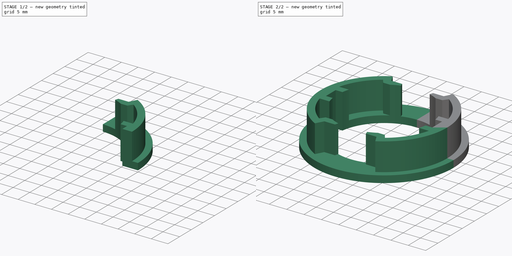
[diagram: build sequence overview — one tinted view per stage of 2, left to right]
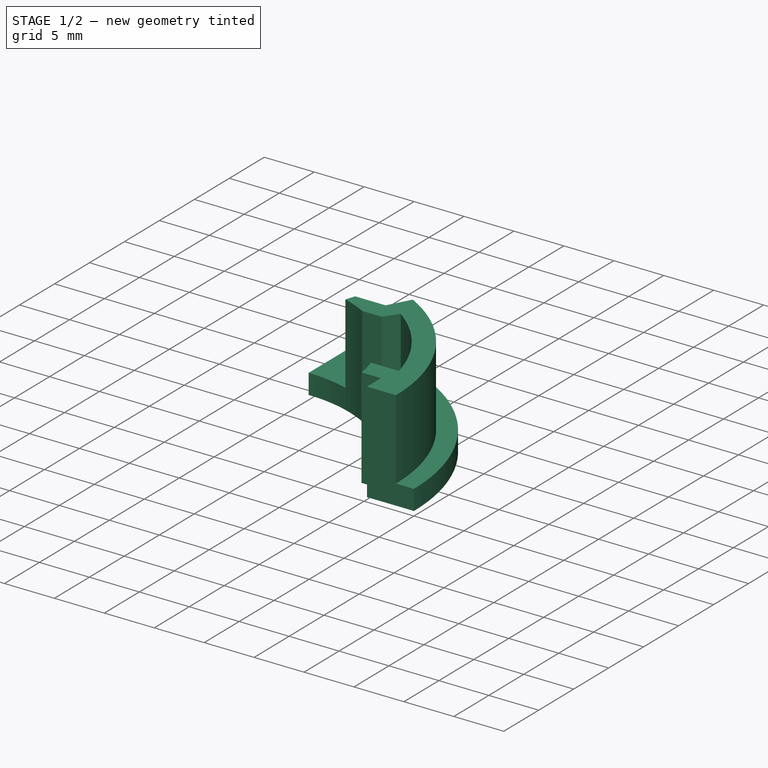
[diagram: stage 1 of 2 — iso view after this stage's code; geometry added in this stage tinted green]
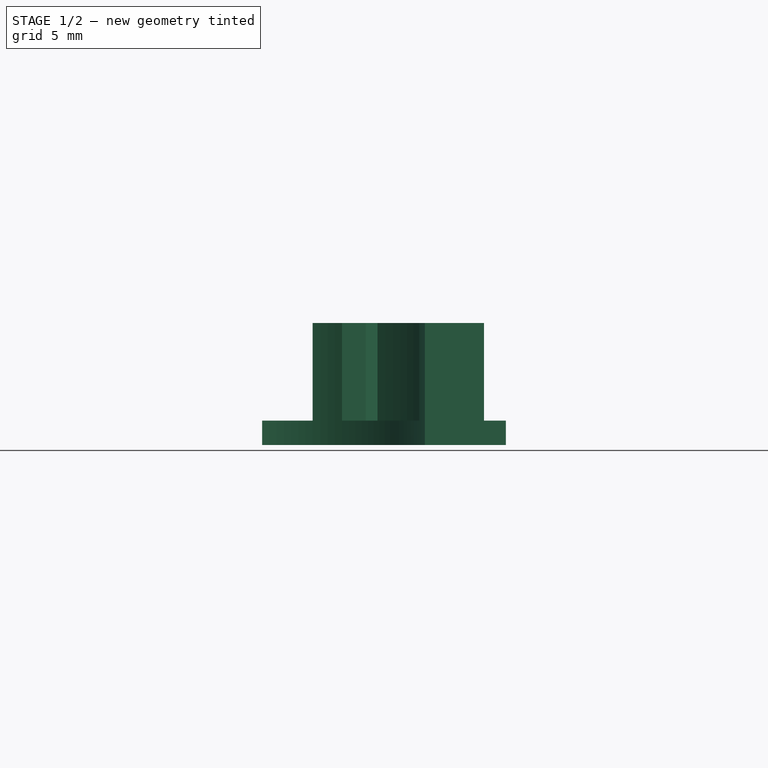
[diagram: stage 1 of 2 — front view after this stage's code; geometry added in this stage tinted green]
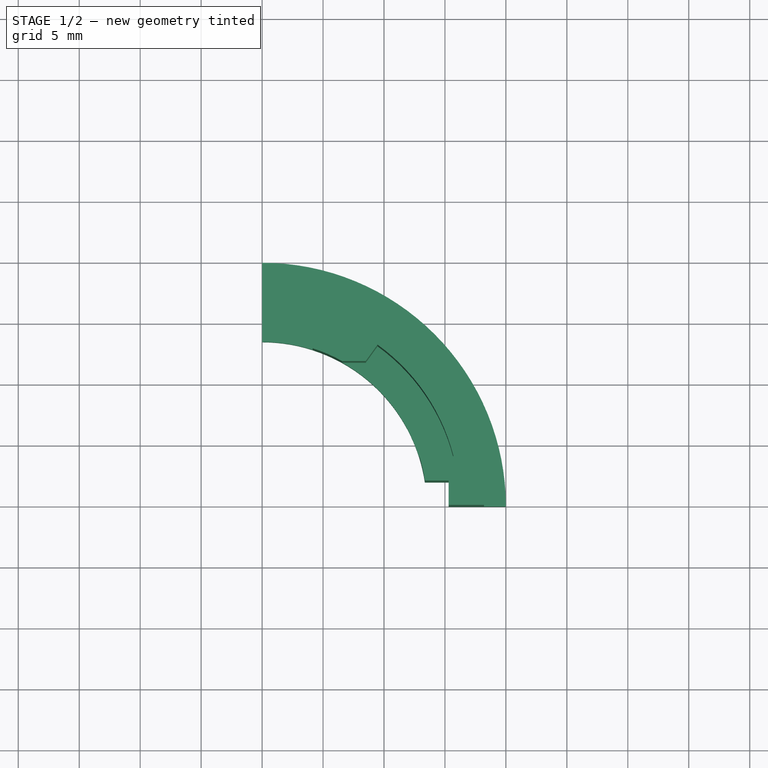
[diagram: stage 1 of 2 — top view after this stage's code; geometry added in this stage tinted green]
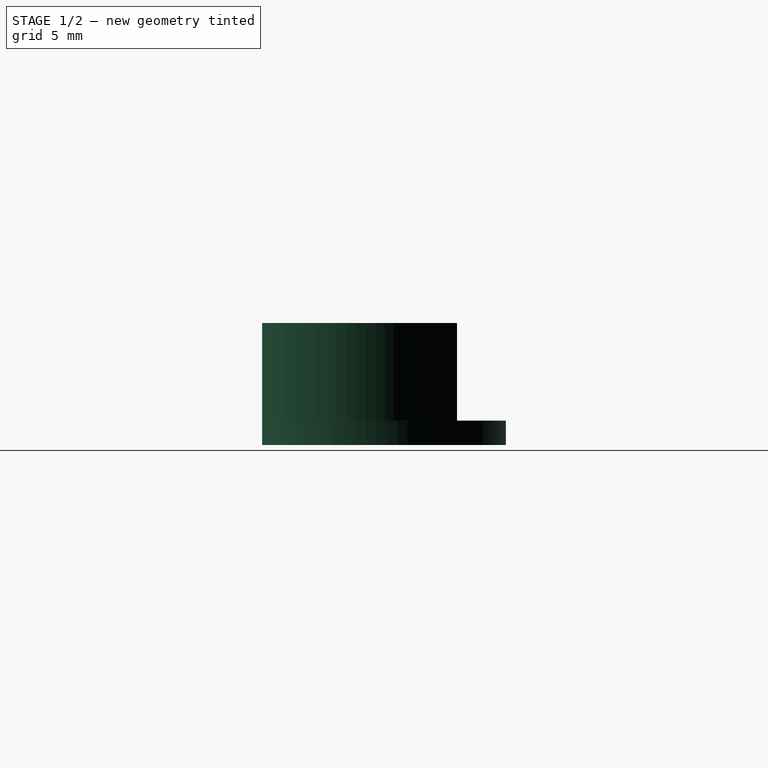
[diagram: stage 1 of 2 — right view after this stage's code; geometry added in this stage tinted green]
FCSTD DOCUMENT  (FreeCAD 1.0R39109 (Git))
Label: Idler
License: All rights reserved
LicenseURL: http://en.wikipedia.org/wiki/All_rights_reserved
objects: Sketcher::SketchObject×2, PartDesign::Pad×2, PartDesign::Mirrored×2, PartDesign::MultiTransform×1, PartDesign::Body×1
note: 17 computed .brp shape members not serialized (recipe doc carries the construction recipe); baked Part::Feature solids carry a one-line shape summary decoded from their .brp

FEATURE [Sketcher::SketchObject] Sketch
  ArcFitTolerance = 1e-06
  AttachmentSupport = -> [XY_Plane]
  FullyConstrained = true
  MakeInternals = false
  MapMode = 5
  sketch-geometry (16):
    g0: ArcOfCircle CenterX=0 CenterY=0 CenterZ=0 NormalX=0 NormalY=0 NormalZ=1 AngleXU=0 Radius=18.2 StartAngle=0 EndAngle=1.07297
    g1: LineSegment StartX=4.45084 StartY=13.8 StartZ=0 EndX=7.5 EndY=13.8 EndZ=0
    g2: LineSegment StartX=8.69074 StartY=15.991 StartZ=0 EndX=7.5 EndY=13.8 EndZ=0
    g3: ArcOfCircle CenterX=0 CenterY=0 CenterZ=0 NormalX=0 NormalY=0 NormalZ=1 AngleXU=0 Radius=16.2 StartAngle=0.249494 EndAngle=0.946319
    g4: LineSegment StartX=9.47171 StartY=13.1426 StartZ=0 EndX=8.50415 EndY=11.8 EndZ=0
    g5: LineSegment StartX=8.50415 StartY=11.8 StartZ=0 EndX=6.5582 EndY=11.8 EndZ=0
    g6: LineSegment [constr] StartX=7.5 StartY=13.8 StartZ=0 EndX=9.25725 EndY=12.845 EndZ=0
    g7: LineSegment [constr] StartX=7.5 StartY=13.8 StartZ=0 EndX=7.5 EndY=11.8 EndZ=0
    g8: ArcOfCircle CenterX=0 CenterY=0 CenterZ=0 NormalX=0 NormalY=0 NormalZ=1 AngleXU=0 Radius=13.5 StartAngle=1.06353 EndAngle=1.2588
    g9: LineSegment StartX=4.14389 StartY=12.8483 StartZ=0 EndX=4.45084 EndY=13.8 EndZ=0
    g10: LineSegment StartX=15.3 StartY=0 StartZ=0 EndX=15.3 EndY=2 EndZ=0
    g11: LineSegment [constr] StartX=9.47171 StartY=13.1426 StartZ=0 EndX=10.6411 EndY=14.7651 EndZ=0
    g12: LineSegment StartX=15.3 StartY=2 StartZ=0 EndX=13.351 EndY=2 EndZ=0
    g13: LineSegment StartX=12.8938 StartY=4 StartZ=0 EndX=15.6984 EndY=4 EndZ=0
    g14: LineSegment StartX=15.3 StartY=0 StartZ=0 EndX=18.2 EndY=0 EndZ=0
    g15: ArcOfCircle CenterX=0 CenterY=0 CenterZ=0 NormalX=0 NormalY=0 NormalZ=1 AngleXU=0 Radius=13.5 StartAngle=0.148695 EndAngle=0.300812
  constraints (48):
    c: Coincident(g0,g-1)
    c: PointOnObject(g0,g-1)
    c: Radius(g0) = 18.2
    c: Horizontal(g1)
    c: DistanceY(g0,g1) = 13.8
    c: Coincident(g2,g0)
    c: Coincident(g2,g1)
    c: PointOnObject(g0,g2)
    c: Coincident(g3,g0)
    c: Coincident(g4,g3)
    c: Coincident(g5,g4)
    c: Horizontal(g5)
    c: PointOnObject(g0,g4)
    c: Coincident(g6,g1)
    c: PointOnObject(g6,g4)
    c: Perpendicular(g2,g6)
    c: Coincident(g7,g1)
    c: PointOnObject(g7,g5)
    c: Vertical(g7)
    c: Equal(g6,g7)
    c: Coincident(g8,g0)
    c: Coincident(g8,g5)
    c: Coincident(g9,g8)
    c: Coincident(g9,g1)
    c: PointOnObject(g10,g-1)
    c: Vertical(g10)
    c: DistanceX(g0,g10) = 15.3
    c: DistanceY(g10,g10) = 2
    c: Coincident(g11,g3)
    c: PointOnObject(g11,g0)
    c: Perpendicular(g0,g11)
    c: Equal(g7,g11)
    c: DistanceY(g7,g7) = 2
    c: Coincident(g12,g10)
    c: Horizontal(g12)
    c: Coincident(g13,g3)
    c: DistanceY(g12,g13) = 2
    c: Horizontal(g13)
    c: Coincident(g14,g10)
    c: Coincident(g14,g0)
    c: Coincident(g15,g0)
    c: Coincident(g15,g12)
    c: Coincident(g15,g13)
    c: Radius(g15) = 13.5
    c: DistanceX(g0,g1) = 7.5
    c: Perpendicular(g8,g9)
    c: Distance(g9,g9) = 1
    c: Equal(g8,g15)
FEATURE [PartDesign::Pad] Pad  label="OuterRim"
  Direction = (0,0,1)
  Length = 10
  Length2 = 10
  Profile = -> Sketch
  ReferenceAxis = -> Sketch [N_Axis]
  Refine = true
  Suppressed = false
  Type = 0
FEATURE [Sketcher::SketchObject] Sketch001
  ArcFitTolerance = 1e-06
  AttachmentSupport = -> [XY_Plane]
  FullyConstrained = true
  MakeInternals = false
  MapMode = 5
  sketch-geometry (6):
    g0: ArcOfCircle CenterX=0 CenterY=0 CenterZ=0 NormalX=0 NormalY=0 NormalZ=1 AngleXU=0 Radius=20 StartAngle=0 EndAngle=1.5708
    g1: LineSegment StartX=8e-16 StartY=13.5 StartZ=0 EndX=1.2e-15 EndY=20 EndZ=0
    g2: LineSegment StartX=15.3 StartY=0 StartZ=0 EndX=20 EndY=0 EndZ=0
    g3: ArcOfCircle CenterX=0 CenterY=0 CenterZ=0 NormalX=0 NormalY=0 NormalZ=1 AngleXU=0 Radius=13.5 StartAngle=0.148695 EndAngle=1.5708
    g4: LineSegment StartX=13.351 StartY=2 StartZ=0 EndX=15.3 EndY=2 EndZ=0
    g5: LineSegment StartX=15.3 StartY=2 StartZ=0 EndX=15.3 EndY=0 EndZ=0
  constraints (18):
    c: PointOnObject(g0,g-1)
    c: Radius(g0) = 20
    c: PointOnObject(g1,g-2)
    c: Coincident(g2,g0)
    c: Coincident(g0,g-1)
    c: Coincident(g3,g0)
    c: PointOnObject(g2,g-1)
    c: Radius(g3) = 13.5
    c: Coincident(g1,g0)
    c: PointOnObject(g1,g-2)
    c: Coincident(g1,g3)
    c: Coincident(g4,g3)
    c: Horizontal(g4)
    c: Coincident(g5,g4)
    c: Coincident(g5,g2)
    c: Vertical(g5)
    c: DistanceY(g5,g5) = 2
    c: DistanceX(g0,g2) = 15.3
FEATURE [PartDesign::Pad] Pad001  label="BasePad"
  BaseFeature = -> Pad
  Direction = (0,0,1)
  Length = 2
  Length2 = 10
  Profile = -> Sketch001
  ReferenceAxis = -> Sketch001 [N_Axis]
  Refine = true
  Suppressed = false
  Type = 0
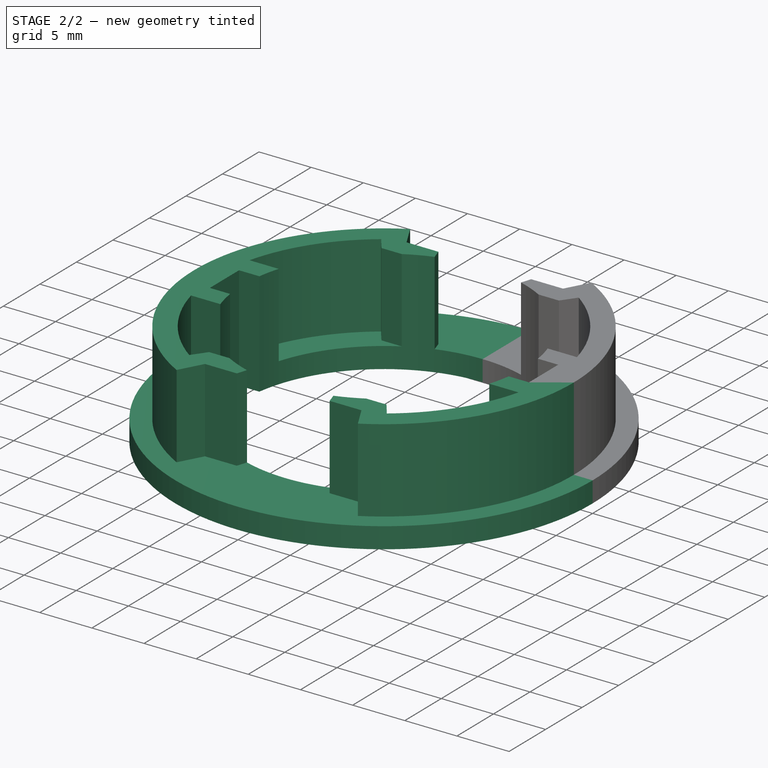
[diagram: stage 2 of 2 — iso view after this stage's code; geometry added in this stage tinted green]
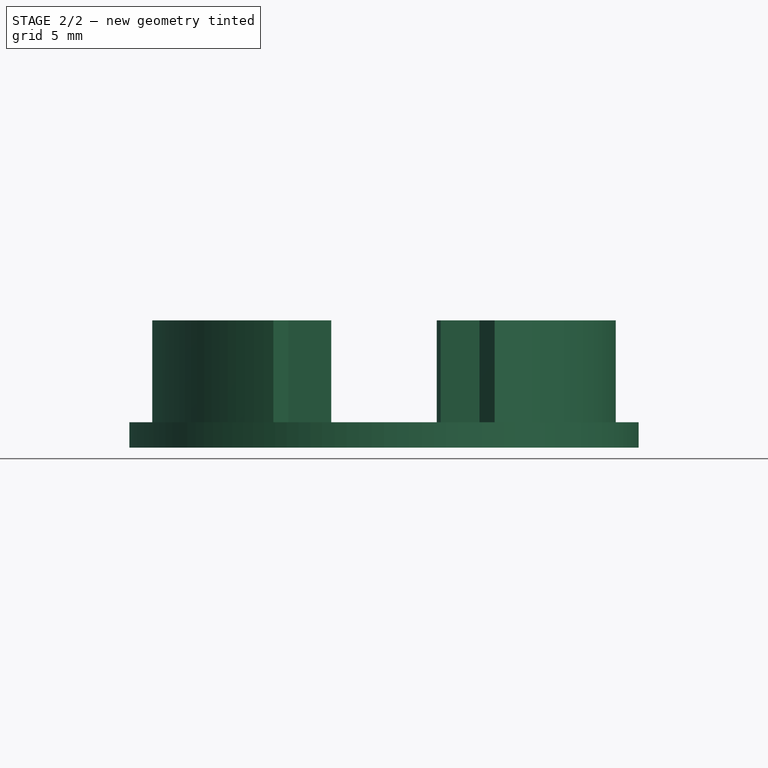
[diagram: stage 2 of 2 — front view after this stage's code; geometry added in this stage tinted green]
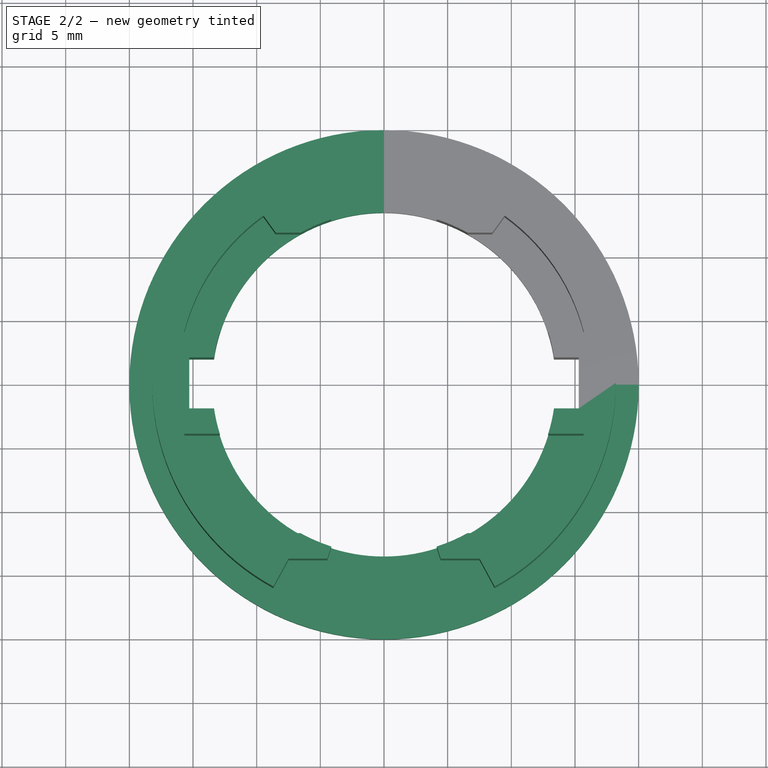
[diagram: stage 2 of 2 — top view after this stage's code; geometry added in this stage tinted green]
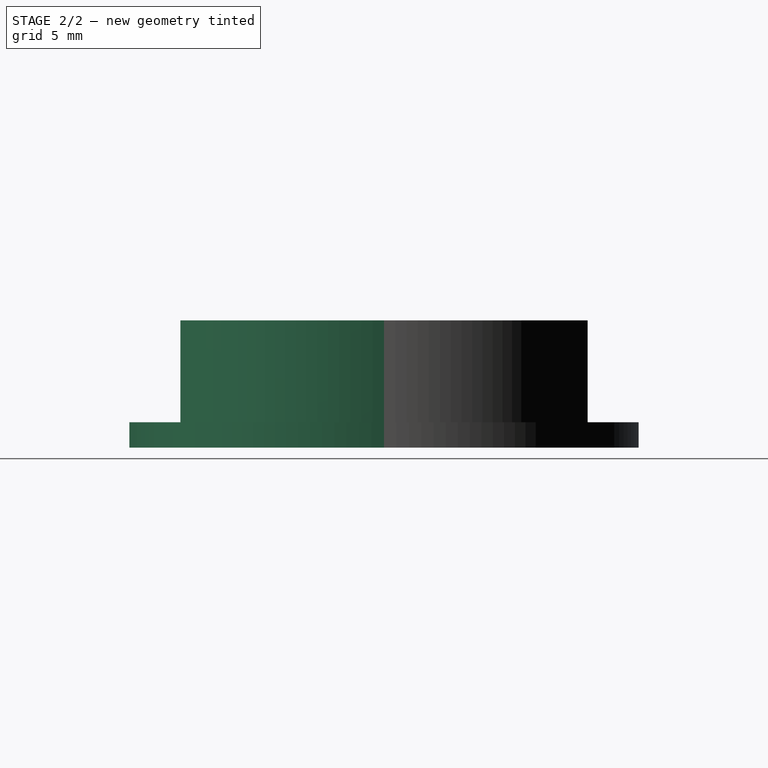
[diagram: stage 2 of 2 — right view after this stage's code; geometry added in this stage tinted green]
FEATURE [PartDesign::Mirrored] Mirrored
  MirrorPlane = -> Sketch [V_Axis]
  Refine = true
  Suppressed = false
  TransformMode = 0
FEATURE [PartDesign::Mirrored] Mirrored001
  MirrorPlane = -> Sketch [H_Axis]
  Refine = true
  Suppressed = false
  TransformMode = 0
FEATURE [PartDesign::MultiTransform] MultiTransform
  BaseFeature = -> Pad001
  Originals = -> [Pad,Pad001]
  Refine = true
  Suppressed = false
  TransformMode = 0
  Transformations = -> [Mirrored,Mirrored001]
FEATURE [PartDesign::Body] Body
  AllowCompound = false
  Group = -> [Sketch,Pad,Sketch001,Pad001,MultiTransform,Mirrored,Mirrored001]
  Origin = -> Origin
  Tip = -> MultiTransform
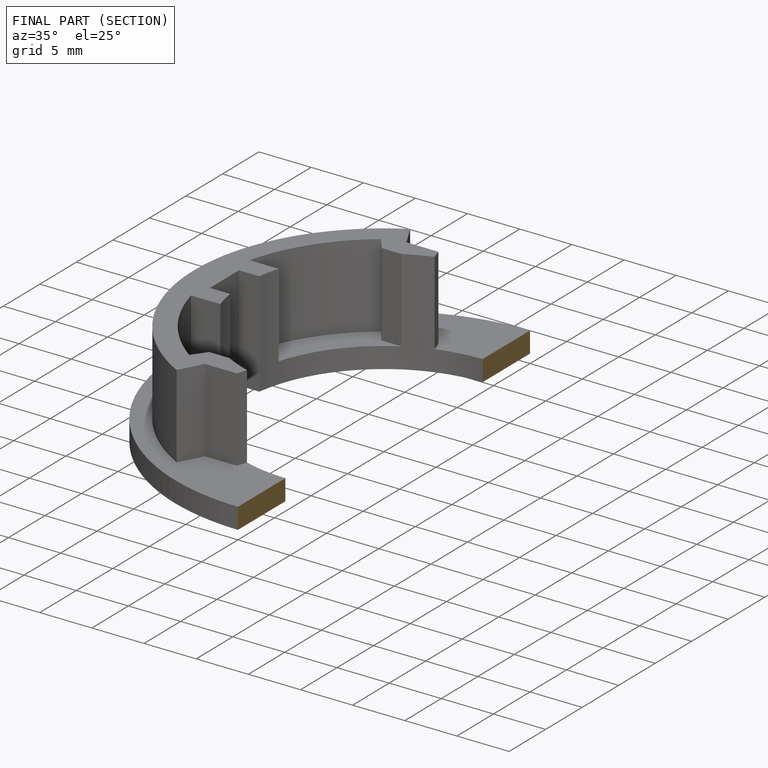
[diagram: finished part — half-section view (interior)]
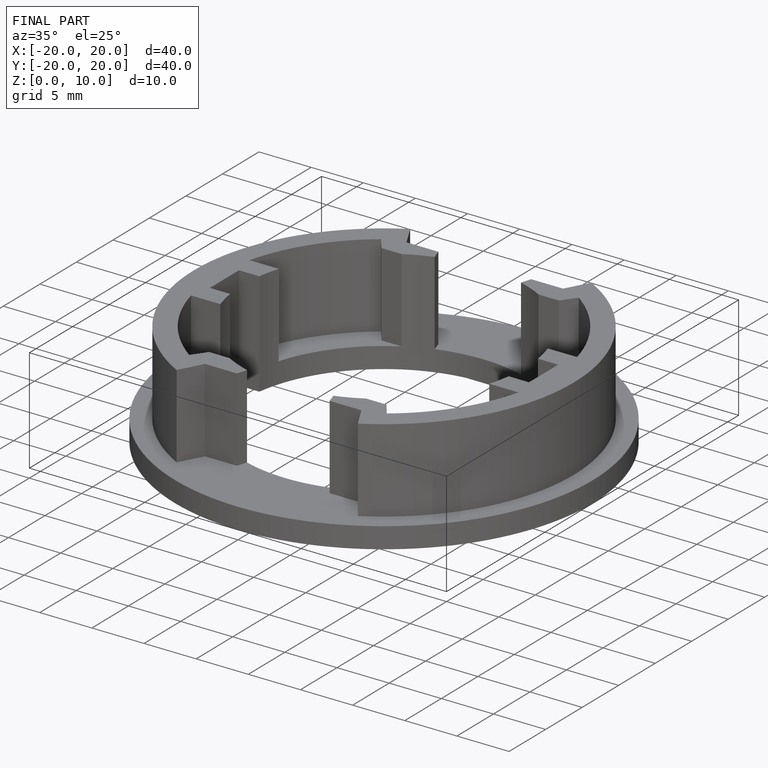
[diagram: finished part — iso view with bounding-box wireframe]
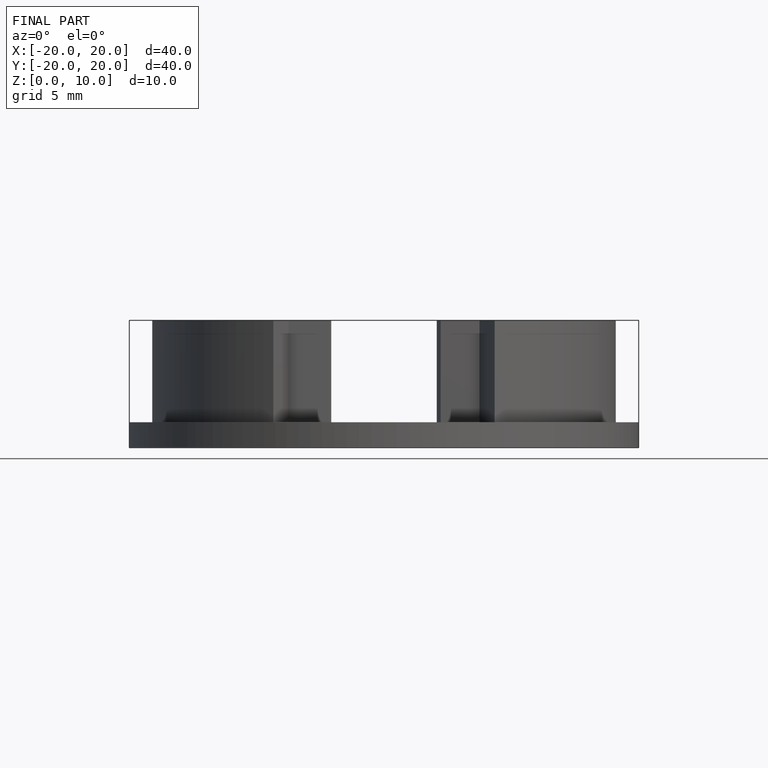
[diagram: finished part — front view with bounding-box wireframe]
